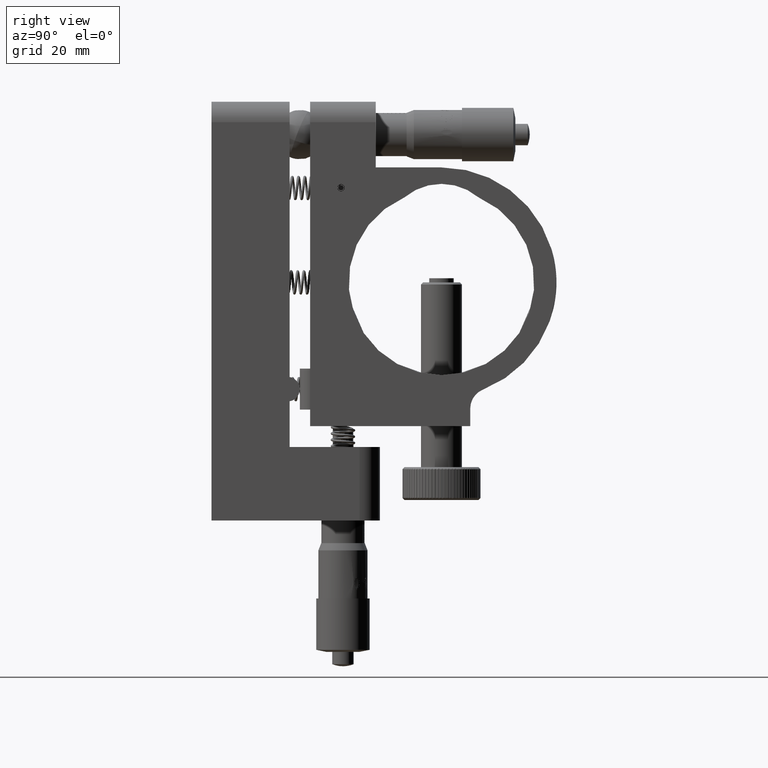
[diagram: clean part render]
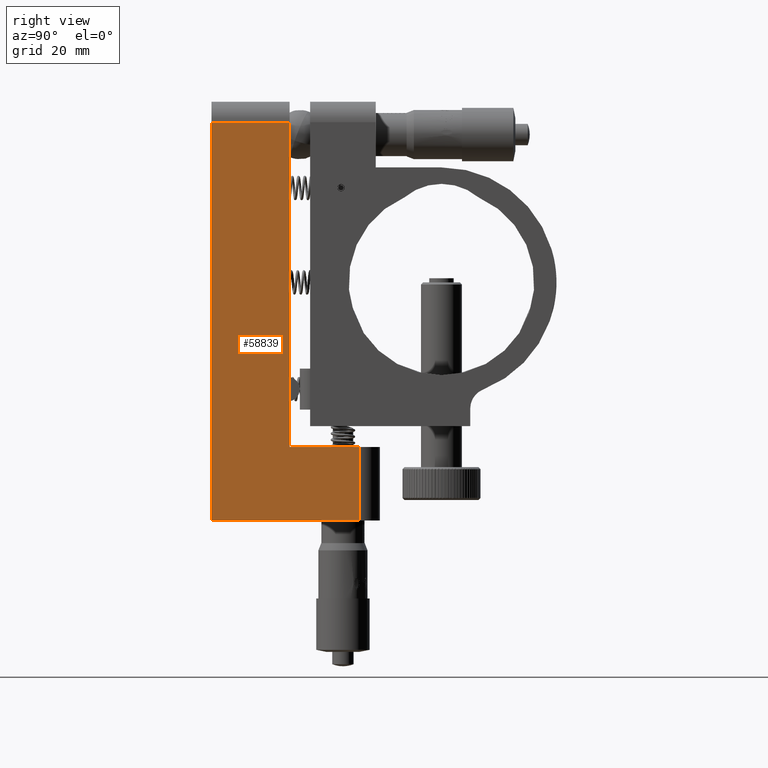
[diagram: same view with one face highlighted and labeled with its STEP entity id]
A machine part, right view. The second image highlights one B-rep face of the part: STEP entity #58839.
In plain terms, the highlighted planar face has unit normal (1, 0, -0).
Its self-contained STEP definition (entity closure, byte-faithful):
#1819 = ORIENTED_EDGE ( 'NONE', *, *, #37091, .T. ) ;
#2753 = LINE ( 'NONE', #64274, #37682 ) ;
#3578 = ORIENTED_EDGE ( 'NONE', *, *, #21887, .T. ) ;
#3846 = ORIENTED_EDGE ( 'NONE', *, *, #36900, .T. ) ;
#6687 = CARTESIAN_POINT ( 'NONE',  ( 38.00000000000000000, 36.00000000000000000, -40.10000000000000100 ) ) ;
#7498 = CARTESIAN_POINT ( 'NONE',  ( 38.00000000000000000, 18.99999999999999600, -40.10000000000000100 ) ) ;
#7944 = VECTOR ( 'NONE', #14130, 1000.000000000000000 ) ;
#8397 = CARTESIAN_POINT ( 'NONE',  ( 38.00000000000000000, 18.99999999999999600, -40.10000000000000100 ) ) ;
#9000 = DIRECTION ( 'NONE',  ( 0.0000000000000000000, 1.237614846119006200E-016, 1.000000000000000000 ) ) ;
#10839 = VERTEX_POINT ( 'NONE', #7498 ) ;
#13369 = EDGE_CURVE ( 'NONE', #79212, #51932, #26927, .T. ) ;
#14130 = DIRECTION ( 'NONE',  ( 0.0000000000000000000, -1.000000000000000000, 0.0000000000000000000 ) ) ;
#14902 = DIRECTION ( 'NONE',  ( 0.0000000000000000000, -1.000000000000000000, 0.0000000000000000000 ) ) ;
#16718 = EDGE_LOOP ( 'NONE', ( #3578, #3846, #63692, #34726, #1819, #62594 ) ) ;
#21438 = DIRECTION ( 'NONE',  ( -0.0000000000000000000, -1.836909530733565600E-016, -1.000000000000000000 ) ) ;
#21768 = VECTOR ( 'NONE', #26880, 1000.000000000000000 ) ;
#21887 = EDGE_CURVE ( 'NONE', #51932, #27150, #45724, .T. ) ;
#26880 = DIRECTION ( 'NONE',  ( -0.0000000000000000000, 1.000000000000000000, -1.692413147294446000E-016 ) ) ;
#26927 = LINE ( 'NONE', #63443, #83536 ) ;
#27150 = VERTEX_POINT ( 'NONE', #90497 ) ;
#27911 = VECTOR ( 'NONE', #28351, 1000.000000000000000 ) ;
#28048 = FACE_OUTER_BOUND ( 'NONE', #16718, .T. ) ;
#28351 = DIRECTION ( 'NONE',  ( 0.0000000000000000000, 0.0000000000000000000, 1.000000000000000000 ) ) ;
#34726 = ORIENTED_EDGE ( 'NONE', *, *, #40855, .T. ) ;
#36900 = EDGE_CURVE ( 'NONE', #27150, #42326, #82325, .T. ) ;
#37091 = EDGE_CURVE ( 'NONE', #58600, #79212, #2753, .T. ) ;
#37682 = VECTOR ( 'NONE', #14902, 1000.000000000000000 ) ;
#40855 = EDGE_CURVE ( 'NONE', #10839, #58600, #45598, .T. ) ;
#41436 = EDGE_CURVE ( 'NONE', #42326, #10839, #60363, .T. ) ;
#42326 = VERTEX_POINT ( 'NONE', #86222 ) ;
#45598 = LINE ( 'NONE', #8397, #72807 ) ;
#45724 = LINE ( 'NONE', #68602, #21768 ) ;
#51932 = VERTEX_POINT ( 'NONE', #85389 ) ;
#58600 = VERTEX_POINT ( 'NONE', #65756 ) ;
#58839 = ADVANCED_FACE ( 'NONE', ( #28048 ), #81476, .T. ) ;
#60363 = LINE ( 'NONE', #76253, #7944 ) ;
#60512 = DIRECTION ( 'NONE',  ( -0.0000000000000000000, 0.0000000000000000000, -1.000000000000000000 ) ) ;
#62594 = ORIENTED_EDGE ( 'NONE', *, *, #13369, .T. ) ;
#63443 = CARTESIAN_POINT ( 'NONE',  ( 38.00000000000000000, -1.065407527825468400E-014, -58.00000000000000000 ) ) ;
#63692 = ORIENTED_EDGE ( 'NONE', *, *, #41436, .T. ) ;
#64274 = CARTESIAN_POINT ( 'NONE',  ( 38.00000000000000000, 6.938893903907228400E-015, 39.00000000000000000 ) ) ;
#65756 = CARTESIAN_POINT ( 'NONE',  ( 38.00000000000000000, 19.00000000000000700, 38.99999999999997200 ) ) ;
#67501 = DIRECTION ( 'NONE',  ( 1.000000000000000000, 0.0000000000000000000, -0.0000000000000000000 ) ) ;
#68602 = CARTESIAN_POINT ( 'NONE',  ( 38.00000000000000000, 40.99999999999999300, -58.00000000000000700 ) ) ;
#72807 = VECTOR ( 'NONE', #9000, 1000.000000000000000 ) ;
#73659 = AXIS2_PLACEMENT_3D ( 'NONE', #75053, #67501, #60512 ) ;
#75053 = CARTESIAN_POINT ( 'NONE',  ( 38.00000000000000000, 40.99999999999999300, -40.10000000000000100 ) ) ;
#76253 = CARTESIAN_POINT ( 'NONE',  ( 38.00000000000000000, 40.99999999999999300, -40.10000000000000100 ) ) ;
#79212 = VERTEX_POINT ( 'NONE', #84852 ) ;
#81476 = PLANE ( 'NONE',  #73659 ) ;
#82325 = LINE ( 'NONE', #6687, #27911 ) ;
#83536 = VECTOR ( 'NONE', #21438, 1000.000000000000000 ) ;
#84852 = CARTESIAN_POINT ( 'NONE',  ( 38.00000000000000000, 7.163947169860903800E-015, 39.00000000000000000 ) ) ;
#85389 = CARTESIAN_POINT ( 'NONE',  ( 38.00000000000000000, -1.065407527825468400E-014, -58.00000000000000000 ) ) ;
#86222 = CARTESIAN_POINT ( 'NONE',  ( 38.00000000000000000, 36.00000000000000000, -40.10000000000000100 ) ) ;
#90497 = CARTESIAN_POINT ( 'NONE',  ( 38.00000000000000000, 36.00000000000000000, -58.00000000000000700 ) ) ;